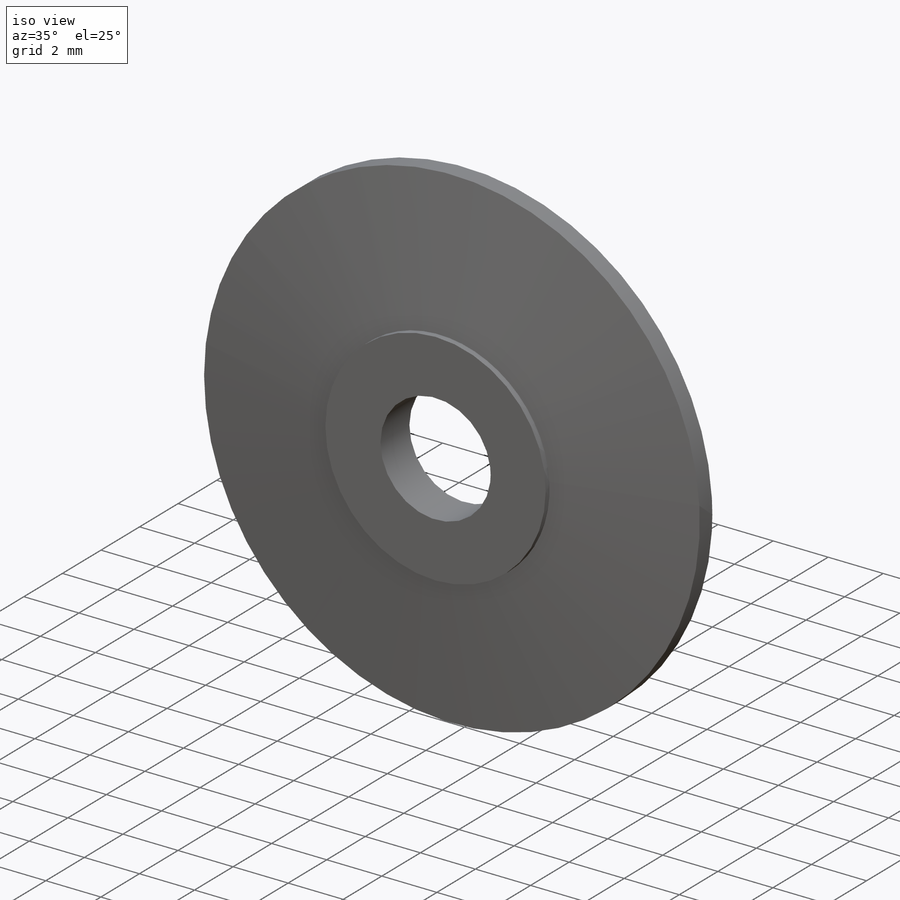
[diagram: iso view]
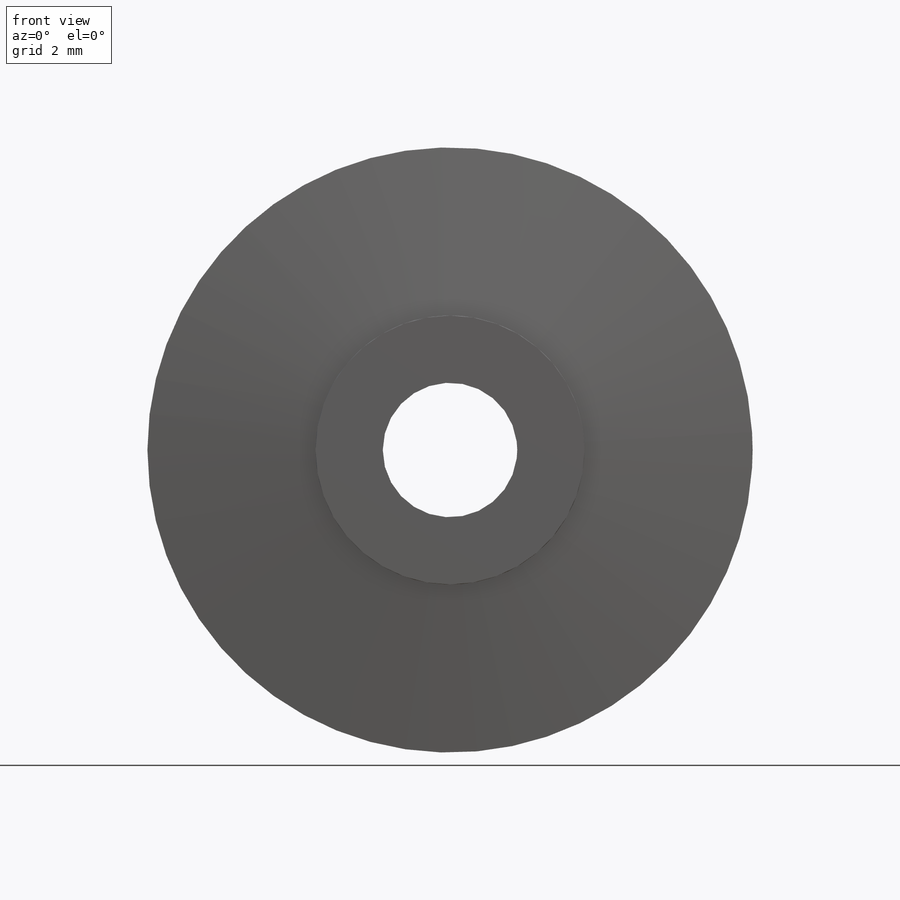
[diagram: front view]
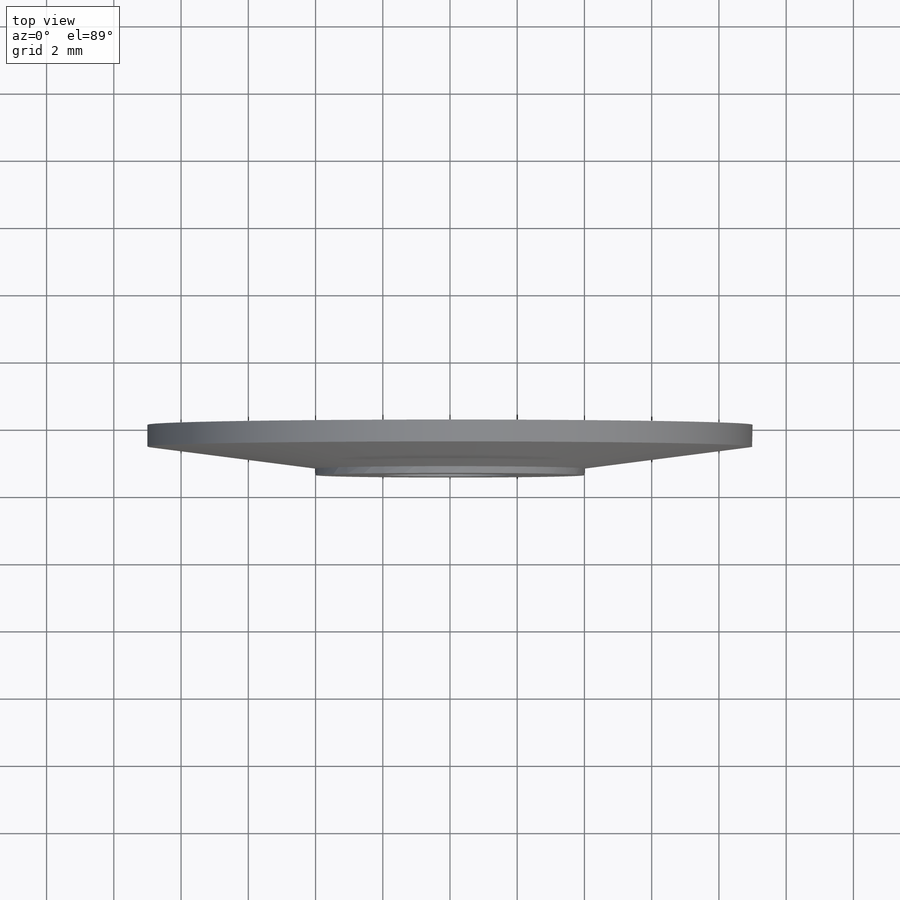
[diagram: top view]
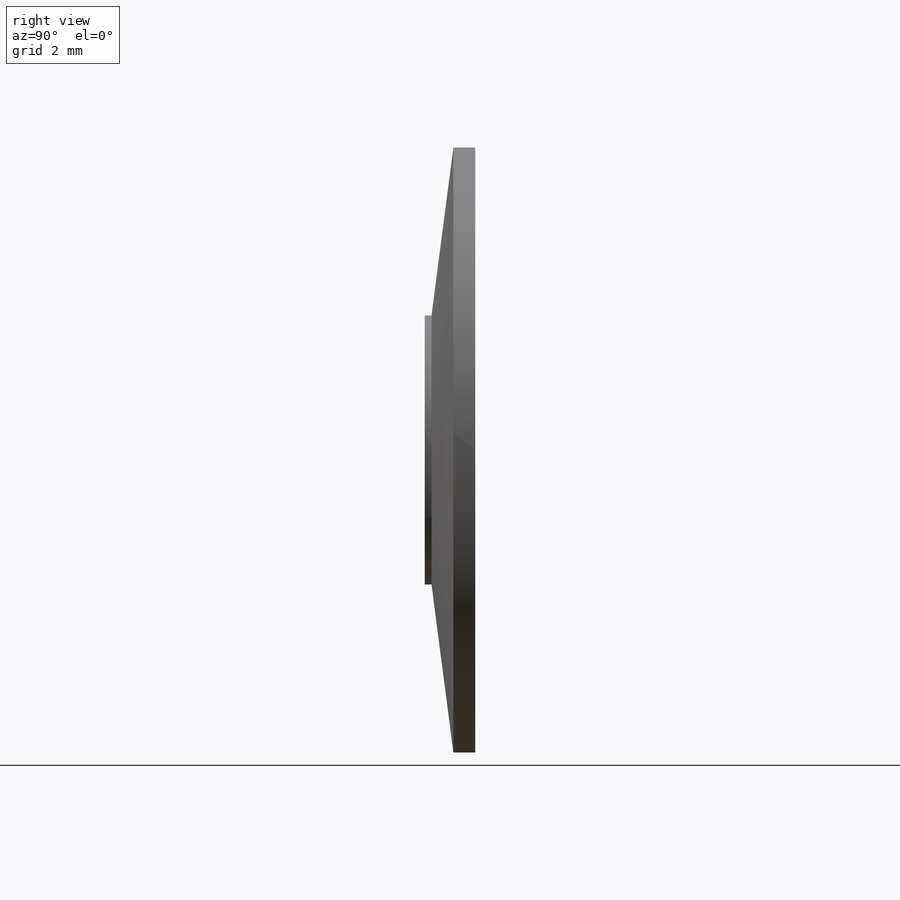
[diagram: right view]
SOLIDWORKS PART (.sldprt)
format: sldprt  version: not decoded by parser v0  size: 159,744 bytes
history: native  units: mm
features: plane x3, sketch x3, extrude x2, material x1, cut_revolve x1 (+10 scaffold rows collapsed)
feature tree (20):
  scaffold x10  (default folders/planes/origin — collapsed)
  material  "ABS"
  plane  "Спереди"
  plane  "Сверху"
  plane  "Справа"
  sketch  "Эскиз1"  dims[D1=4.0mm D2=18.0mm]
  extrude  "Бобышка-Вытянуть1"  Depth=1.3mm
  sketch  "Эскиз2"  dims[D1=8.0mm]
  extrude  "Бобышка-Вытянуть2"  Depth=0.2mm
  sketch  "Эскиз3"
  cut_revolve  "Вырез-Повернуть1"  Angle=360deg
decode coverage: 5 of 6 modeling features carry decoded parameters
note: suppression state not decoded; provenance and decode notes live in map.json
